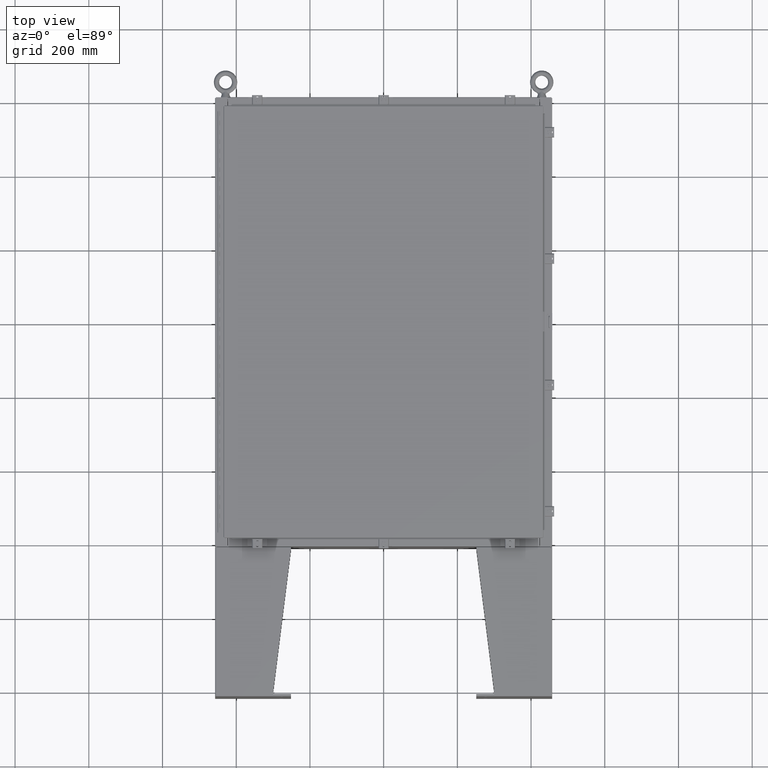
[diagram: clean part render]
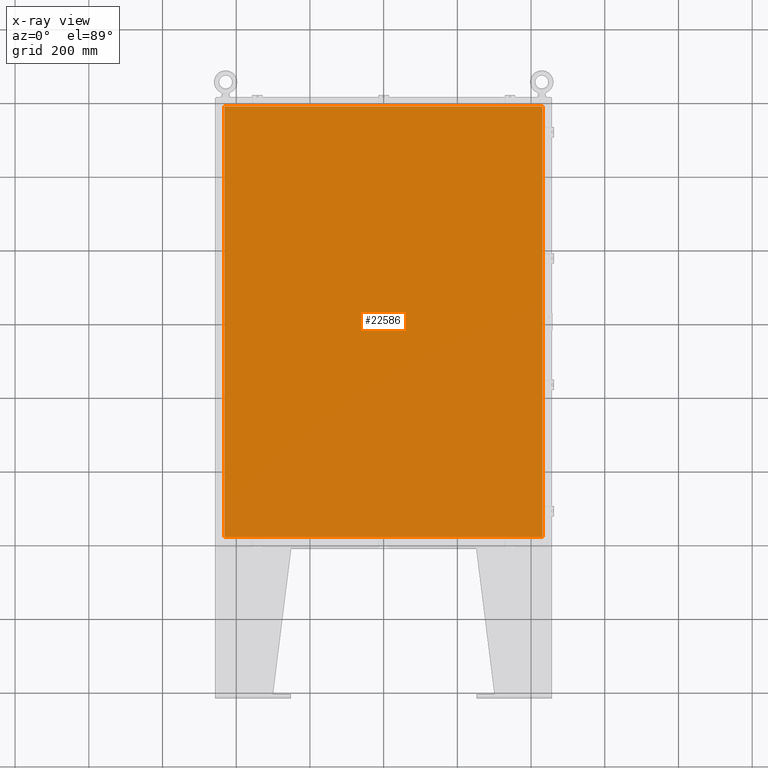
[diagram: x-ray — body ghosted, one internal face saturated and labeled with its STEP entity id]
A machine part, top view, then the same camera in x-ray: the body is ghosted and one INTERNAL B-rep face — a face not visible from any outside direction — is saturated and labeled: STEP entity #22586.
In plain terms, the highlighted planar face has unit normal (0, 0, -1).
Its self-contained STEP definition (entity closure, byte-faithful):
#91 = VERTEX_POINT ( 'NONE', #52861 ) ;
#947 = CARTESIAN_POINT ( 'NONE',  ( -16.99029999999999800, -23.00630000000000000, -0.07470000000000000300 ) ) ;
#3386 = DIRECTION ( 'NONE',  ( 1.000000000000000000, -0.0000000000000000000, -0.0000000000000000000 ) ) ;
#4350 = PLANE ( 'NONE',  #55442 ) ;
#7798 = EDGE_CURVE ( 'NONE', #36449, #15125, #34432, .T. ) ;
#11716 = VECTOR ( 'NONE', #33252, 39.37007874015748100 ) ;
#12799 = DIRECTION ( 'NONE',  ( -1.000000000000000000, 0.0000000000000000000, -0.0000000000000000000 ) ) ;
#15125 = VERTEX_POINT ( 'NONE', #52720 ) ;
#17019 = CARTESIAN_POINT ( 'NONE',  ( -16.99029999999999800, -23.00630000000000300, -0.07469999999999804600 ) ) ;
#18464 = EDGE_CURVE ( 'NONE', #15125, #91, #36346, .T. ) ;
#19164 = CARTESIAN_POINT ( 'NONE',  ( -16.99029999999999400, 23.00630000000001000, -0.07470000000000129300 ) ) ;
#19373 = DIRECTION ( 'NONE',  ( -1.000000000000000000, -0.0000000000000000000, -0.0000000000000000000 ) ) ;
#21673 = VECTOR ( 'NONE', #3386, 39.37007874015748100 ) ;
#22212 = EDGE_CURVE ( 'NONE', #30944, #36449, #45818, .T. ) ;
#22586 = ADVANCED_FACE ( 'NONE', ( #27330 ), #4350, .T. ) ;
#22859 = VECTOR ( 'NONE', #19373, 39.37007874015748100 ) ;
#27330 = FACE_OUTER_BOUND ( 'NONE', #51775, .T. ) ;
#29296 = ORIENTED_EDGE ( 'NONE', *, *, #22212, .F. ) ;
#30879 = CARTESIAN_POINT ( 'NONE',  ( 0.0000000000000000000, 0.0000000000000000000, -0.07470000000000000300 ) ) ;
#30944 = VERTEX_POINT ( 'NONE', #947 ) ;
#31191 = ORIENTED_EDGE ( 'NONE', *, *, #40973, .F. ) ;
#31253 = CARTESIAN_POINT ( 'NONE',  ( 16.99029999999999800, 23.00630000000001000, -0.07469999999999804600 ) ) ;
#33041 = CARTESIAN_POINT ( 'NONE',  ( 16.99029999999999800, -23.00630000000000300, -0.07470000000000019700 ) ) ;
#33252 = DIRECTION ( 'NONE',  ( 0.0000000000000000000, 1.000000000000000000, 0.0000000000000000000 ) ) ;
#34419 = ORIENTED_EDGE ( 'NONE', *, *, #7798, .F. ) ;
#34432 = LINE ( 'NONE', #33041, #11716 ) ;
#36346 = LINE ( 'NONE', #31253, #22859 ) ;
#36449 = VERTEX_POINT ( 'NONE', #52409 ) ;
#40973 = EDGE_CURVE ( 'NONE', #91, #30944, #54626, .T. ) ;
#44546 = DIRECTION ( 'NONE',  ( 0.0000000000000000000, 0.0000000000000000000, -1.000000000000000000 ) ) ;
#45715 = ORIENTED_EDGE ( 'NONE', *, *, #18464, .F. ) ;
#45818 = LINE ( 'NONE', #17019, #21673 ) ;
#46324 = DIRECTION ( 'NONE',  ( 0.0000000000000000000, -1.000000000000000000, 0.0000000000000000000 ) ) ;
#51775 = EDGE_LOOP ( 'NONE', ( #34419, #29296, #31191, #45715 ) ) ;
#52409 = CARTESIAN_POINT ( 'NONE',  ( 16.99029999999999800, -23.00630000000000000, -0.07470000000000000300 ) ) ;
#52720 = CARTESIAN_POINT ( 'NONE',  ( 16.99029999999999800, 23.00630000000000300, -0.07470000000000000300 ) ) ;
#52861 = CARTESIAN_POINT ( 'NONE',  ( -16.99029999999999400, 23.00630000000000300, -0.07470000000000000300 ) ) ;
#54626 = LINE ( 'NONE', #19164, #56037 ) ;
#55442 = AXIS2_PLACEMENT_3D ( 'NONE', #30879, #44546, #12799 ) ;
#56037 = VECTOR ( 'NONE', #46324, 39.37007874015748100 ) ;